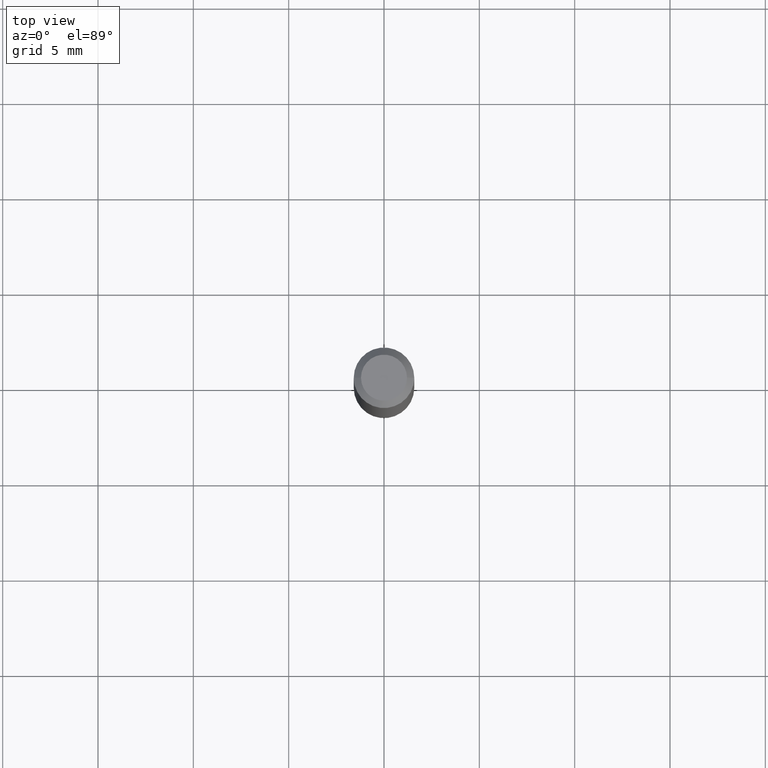
[diagram: clean part render]
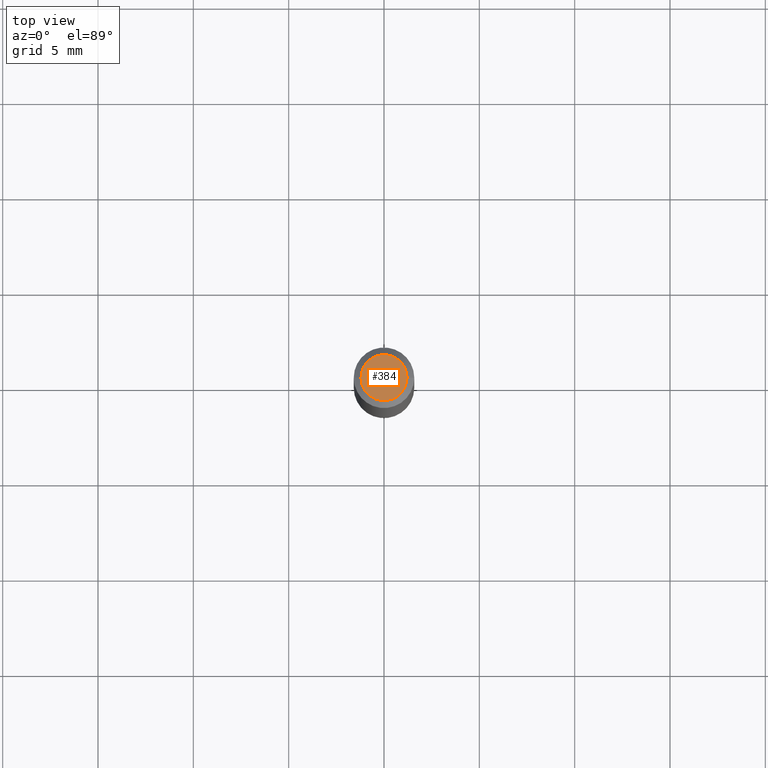
[diagram: same view with one face highlighted and labeled with its STEP entity id]
A machine part, top view. The second image highlights one B-rep face of the part: STEP entity #384.
In plain terms, the highlighted planar face has unit normal (0, -0, -1).
Its self-contained STEP definition (entity closure, byte-faithful):
#27 = ORIENTED_EDGE ( 'NONE', *, *, #404, .T. ) ;
#38 = CIRCLE ( 'NONE', #281, 0.04749999999999999362 ) ;
#94 = FACE_OUTER_BOUND ( 'NONE', #427, .T. ) ;
#126 = DIRECTION ( 'NONE',  ( -1.000000000000000000, 6.982962677686265922E-15, -4.876176775795935793E-29 ) ) ;
#139 = VERTEX_POINT ( 'NONE', #188 ) ;
#144 = CARTESIAN_POINT ( 'NONE',  ( -3.223020679335594837E-45, 4.601619341103081537E-31, 1.317956160873471783E-16 ) ) ;
#149 = CIRCLE ( 'NONE', #423, 0.04749999999999999362 ) ;
#155 = DIRECTION ( 'NONE',  ( -2.445468806185136597E-29, 3.491481338843145583E-15, 1.000000000000000000 ) ) ;
#162 = PLANE ( 'NONE',  #360 ) ;
#182 = CARTESIAN_POINT ( 'NONE',  ( -0.04749999999999999362, 3.578768372314212971E-16, 1.317956160873447624E-16 ) ) ;
#188 = CARTESIAN_POINT ( 'NONE',  ( 0.04749999999999999362, -4.035134999187576158E-16, 1.317956160873497667E-16 ) ) ;
#263 = DIRECTION ( 'NONE',  ( -2.445468806185136597E-29, 3.491481338843145583E-15, 1.000000000000000000 ) ) ;
#281 = AXIS2_PLACEMENT_3D ( 'NONE', #370, #155, #418 ) ;
#321 = DIRECTION ( 'NONE',  ( 2.438088387897960049E-29, -3.491481338843145188E-15, -1.000000000000000000 ) ) ;
#333 = EDGE_CURVE ( 'NONE', #393, #139, #38, .T. ) ;
#358 = CARTESIAN_POINT ( 'NONE',  ( 3.316907271900976096E-16, 0.04749999999999999362, -9.994755555137580731E-17 ) ) ;
#360 = AXIS2_PLACEMENT_3D ( 'NONE', #358, #321, #126 ) ;
#370 = CARTESIAN_POINT ( 'NONE',  ( -3.223020679335594837E-45, 4.601619341103081537E-31, 1.317956160873471783E-16 ) ) ;
#384 = ADVANCED_FACE ( 'NONE', ( #94 ), #162, .F. ) ;
#393 = VERTEX_POINT ( 'NONE', #182 ) ;
#404 = EDGE_CURVE ( 'NONE', #139, #393, #149, .T. ) ;
#418 = DIRECTION ( 'NONE',  ( 1.000000000000000000, -6.982962677686267499E-15, 4.884662768193073002E-29 ) ) ;
#423 = AXIS2_PLACEMENT_3D ( 'NONE', #144, #263, #446 ) ;
#427 = EDGE_LOOP ( 'NONE', ( #432, #27 ) ) ;
#432 = ORIENTED_EDGE ( 'NONE', *, *, #333, .T. ) ;
#446 = DIRECTION ( 'NONE',  ( 1.000000000000000000, -6.982962677686267499E-15, 4.884662768193073002E-29 ) ) ;